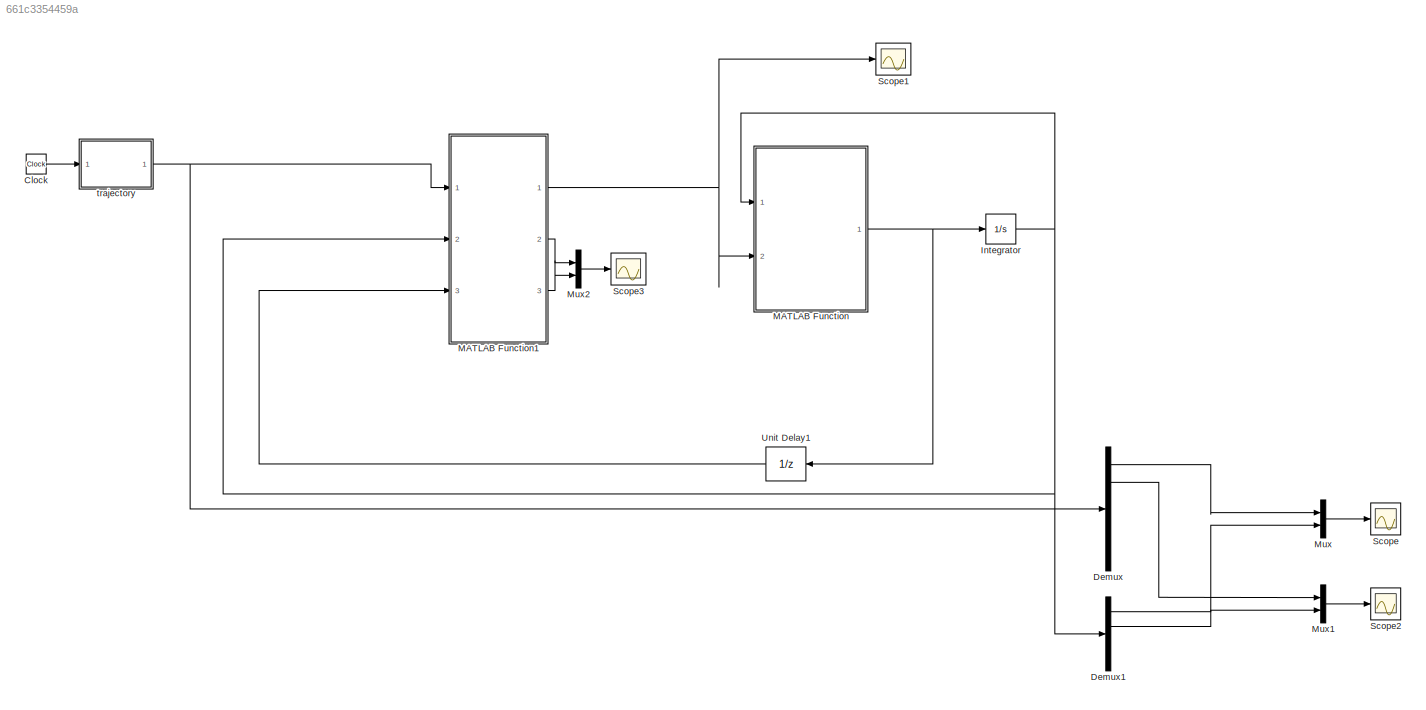
MODEL slx_661c3354459a
KIND model
CONFIG AbsTol = auto
CONFIG EnableMultiTasking = off
CONFIG FixedStep = 10e-4
CONFIG MaxStep = auto
CONFIG MinStep = auto
CONFIG RelTol = auto
CONFIG SampleTimeConstraint = Unconstrained
CONFIG Solver = FixedStepAuto
CONFIG SolverName = FixedStepAuto
CONFIG StartTime = 0.0
CONFIG StopTime = 10.0
BLOCK [Clock] Clock
BLOCK [Demux] Demux
  DisplayOption = bar
  Outputs = 6
  Ports = [1, 6]
BLOCK [Demux] Demux1
  DisplayOption = bar
  Ports = [1, 4]
BLOCK [Integrator] Integrator
  InitialCondition = [0;0;0;0]
  Ports = [1, 1]
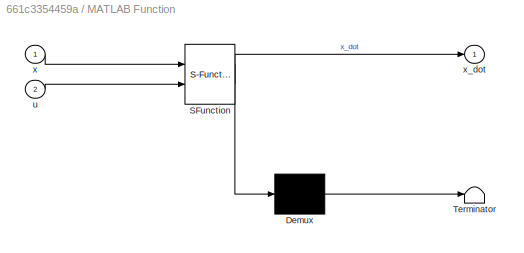
BLOCK [SubSystem] MATLAB Function
  ErrorFcn = Stateflow.Translate.translate
  PermitHierarchicalResolution = ExplicitOnly
  Ports = [2, 1]
  RequestExecContextInheritance = off
  SFBlockType = MATLAB Function
  TreatAsAtomicUnit = on
  Variant = off
BLOCK [Demux] MATLAB Function/ Demux 
  Outputs = 1
  Ports = [1, 1]
BLOCK [S-Function] MATLAB Function/ SFunction 
  EnableBusSupport = on
  FunctionName = sf_sfun
  PortCounts = [2 2]
  Ports = [2, 2]
  SFcnIsStateOwnerBlock = off
  SFunctionDeploymentMode = off
  Tag = Stateflow S-Function plant_1 2
BLOCK [Terminator] MATLAB Function/ Terminator 
BLOCK [Inport] MATLAB Function/u
  IconDisplay = Port number
  Port = 2
BLOCK [Inport] MATLAB Function/x
  IconDisplay = Port number
BLOCK [Outport] MATLAB Function/x_dot
  IconDisplay = Port number
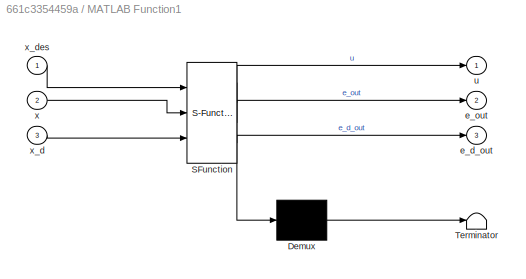
BLOCK [SubSystem] MATLAB Function1
  ErrorFcn = Stateflow.Translate.translate
  PermitHierarchicalResolution = ExplicitOnly
  Ports = [3, 3]
  RequestExecContextInheritance = off
  SFBlockType = MATLAB Function
  TreatAsAtomicUnit = on
  Variant = off
BLOCK [Demux] MATLAB Function1/ Demux 
  Outputs = 1
  Ports = [1, 1]
BLOCK [S-Function] MATLAB Function1/ SFunction 
  EnableBusSupport = on
  FunctionName = sf_sfun
  PortCounts = [3 4]
  Ports = [3, 4]
  SFcnIsStateOwnerBlock = off
  SFunctionDeploymentMode = off
  Tag = Stateflow S-Function plant_1 1
BLOCK [Terminator] MATLAB Function1/ Terminator 
BLOCK [Outport] MATLAB Function1/e_d_out
  IconDisplay = Port number
  Port = 3
BLOCK [Outport] MATLAB Function1/e_out
  IconDisplay = Port number
  Port = 2
BLOCK [Outport] MATLAB Function1/u
  IconDisplay = Port number
BLOCK [Inport] MATLAB Function1/x
  IconDisplay = Port number
  Port = 2
BLOCK [Inport] MATLAB Function1/x_d
  IconDisplay = Port number
  Port = 3
BLOCK [Inport] MATLAB Function1/x_des
  IconDisplay = Port number
BLOCK [Mux] Mux
  DisplayOption = bar
  Inputs = 2
  Ports = [2, 1]
BLOCK [Mux] Mux1
  DisplayOption = bar
  Inputs = 2
  Ports = [2, 1]
BLOCK [Mux] Mux2
  DisplayOption = bar
  Inputs = 2
  Ports = [2, 1]
BLOCK [Scope] Scope
  NumInputPorts = 1
  Ports = [1]
  ScopeSpecificationString = Simulink.scopes.TimeScopeBlockCfg('CurrentConfiguration', extmgr.ConfigurationSet(extmgr.Configuration('Core','General UI',true),extmgr.Configuration('Core','Source UI',true),extmgr.Configuration('Sources','WiredSimulink',true),extmgr.Configuration('Visuals','Time Domain',true,'SerializedDisplays',{struct('MinYLimReal','-0.14553','MaxYLimReal','0.14073','YLabelReal','','MinYLimMag','0.00000','MaxY...<+1365ch>
BLOCK [Scope] Scope1
  NumInputPorts = 1
  Ports = [1]
  ScopeSpecificationString = Simulink.scopes.TimeScopeBlockCfg('CurrentConfiguration', extmgr.ConfigurationSet(extmgr.Configuration('Core','General UI',true),extmgr.Configuration('Core','Source UI',true),extmgr.Configuration('Sources','WiredSimulink',true,'DataLoggingVariableName','ScopeData1'),extmgr.Configuration('Visuals','Time Domain',true,'SerializedDisplays',{struct('MinYLimReal','2.261','MaxYLimReal','42.01229','YLabel...<+1448ch>
BLOCK [Scope] Scope2
  NumInputPorts = 1
  Ports = [1]
  ScopeSpecificationString = Simulink.scopes.TimeScopeBlockCfg('CurrentConfiguration', extmgr.ConfigurationSet(extmgr.Configuration('Core','General UI',true),extmgr.Configuration('Core','Source UI',true),extmgr.Configuration('Sources','WiredSimulink',true,'DataLoggingVariableName','ScopeData1'),extmgr.Configuration('Visuals','Time Domain',true,'SerializedDisplays',{struct('MinYLimReal','-0.16133','MaxYLimReal','0.12904','YLab...<+1404ch>
BLOCK [Scope] Scope3
  NumInputPorts = 1
  Ports = [1]
  ScopeSpecificationString = Simulink.scopes.TimeScopeBlockCfg('CurrentConfiguration', extmgr.ConfigurationSet(extmgr.Configuration('Core','General UI',true),extmgr.Configuration('Core','Source UI',true),extmgr.Configuration('Sources','WiredSimulink',true,'DataLoggingVariableName','ScopeData1'),extmgr.Configuration('Visuals','Time Domain',true,'SerializedDisplays',{struct('MinYLimReal','-0.13092','MaxYLimReal','0.36361','YLab...<+1460ch>
BLOCK [UnitDelay] Unit Delay1
  InputProcessing = Elements as channels (sample based)
  SampleTime = -1
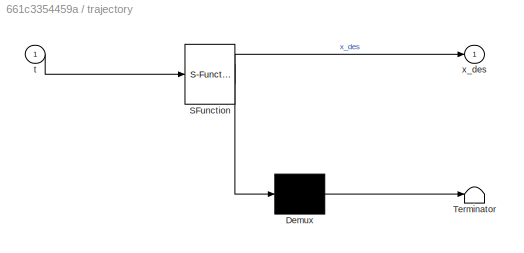
BLOCK [SubSystem] trajectory
  ErrorFcn = Stateflow.Translate.translate
  PermitHierarchicalResolution = ExplicitOnly
  Ports = [1, 1]
  RequestExecContextInheritance = off
  SFBlockType = MATLAB Function
  TreatAsAtomicUnit = on
  Variant = off
BLOCK [Demux] trajectory/ Demux 
  Outputs = 1
  Ports = [1, 1]
BLOCK [S-Function] trajectory/ SFunction 
  EnableBusSupport = on
  FunctionName = sf_sfun
  PortCounts = [1 2]
  Ports = [1, 2]
  SFcnIsStateOwnerBlock = off
  SFunctionDeploymentMode = off
  Tag = Stateflow S-Function plant_1 3
BLOCK [Terminator] trajectory/ Terminator 
BLOCK [Inport] trajectory/t
  IconDisplay = Port number
BLOCK [Outport] trajectory/x_des
  IconDisplay = Port number
LINE Clock:1 -> trajectory:1
LINE Demux1:1 -> Mux:2
LINE Demux1:2 -> Mux1:2
LINE Demux:1 -> Mux:1
LINE Demux:2 -> Mux1:1
NET Integrator:1 -> Demux1:1, MATLAB Function1:2, MATLAB Function:1
NET MATLAB Function1:1 -> MATLAB Function:2, Scope1:1
LINE MATLAB Function1:2 -> Mux2:1
LINE MATLAB Function1:3 -> Mux2:2
NET MATLAB Function:1 -> Integrator:1, Unit Delay1:1
LINE Mux1:1 -> Scope2:1
LINE Mux2:1 -> Scope3:1
LINE Mux:1 -> Scope:1
LINE Unit Delay1:1 -> MATLAB Function1:3
NET trajectory:1 -> Demux:1, MATLAB Function1:1
note: NET lines group one-source signal fan-out (src -> all destinations, sorted); 1:1 wires keep LINE
CHART MATLAB Function1 states=1 transitions=1
  STATE_LABEL 'eML_blk_kernel()'
  STATE_LABEL "SCRIPT:\nfunction [u,e_out,e_d_out]  = fcn(x_des,x,x_d)\n\n% PD Computed-Torque control input\nm1 = 0.8; \nm2 = 2.3; \na1 = 1; \na2 = 1; \ng= 9.81; % arm parameters\n\nKp = 100; \nKv = 1*eye(2); % controller parameters\nlam = 1*eye(2);\n\n% epsilon value\neps = 0.1;\n\n% tracking errors\nqd = x_des(1:2,1);\nqdp = x_des(3:4,1);\n\ne = qd - [x(1) x(2)]';\nep = qdp - [x(3) x(4)]';\n\nr = ep + lam*e;\n\nqdpp = x_des(5:6,1);\n\n%...<+480ch>"
CHART MATLAB Function states=1 transitions=1
  STATE_LABEL 'eML_blk_kernel()'
  STATE_LABEL 'SCRIPT:\nfunction x_dot = fcn(x,u)\n\n% arm parameters\nm1 = 0.8; \nm2 = 2.3; \na1 = 1; \na2 = 1; \ng = 9.81;   \n\n% inertia M(q) and nonlinear terms N(q,qdot)\nM11= (m1 + m2)*a1^2 + m2*a2^2 + 2*m2*a1*a2*cos(x(2)) ;\nM12= m2*a2^2 + m2*a1*a2*cos(x(2)) ;\nM22= m2*a2^2 ;\nN1= -m2*a1*a2*(2*x(3)*x(4) + x(4)^2)*sin(x(2)) ;\nN1= N1 + (m1 + m2)*g*a1*cos(x(1)) + m2*g*a2*cos(x(1) + x(2));\nN2= m2*a1*a2*x(3)^2*sin(x(2)) + ...<+397ch>'
CHART trajectory states=1 transitions=1
  STATE_LABEL 'eML_blk_kernel()'
  STATE_LABEL "SCRIPT:\nfunction x_des = fcn(t)\n\n% compute desired trajectory\nperiod= 2 ; amp1= 0.1 ; amp2= 0.1 ;\nfact= 2*pi/period;\nsinf= sin(fact*t);\ncosf= cos(fact*t);\nqd= [amp1*sinf amp2*cosf];\nqdp= fact*[amp1*cosf -amp2*sinf];\nqdpp= -fact^2*qd;\n\nx_des = [qd qdp qdpp]';\n\nend"
